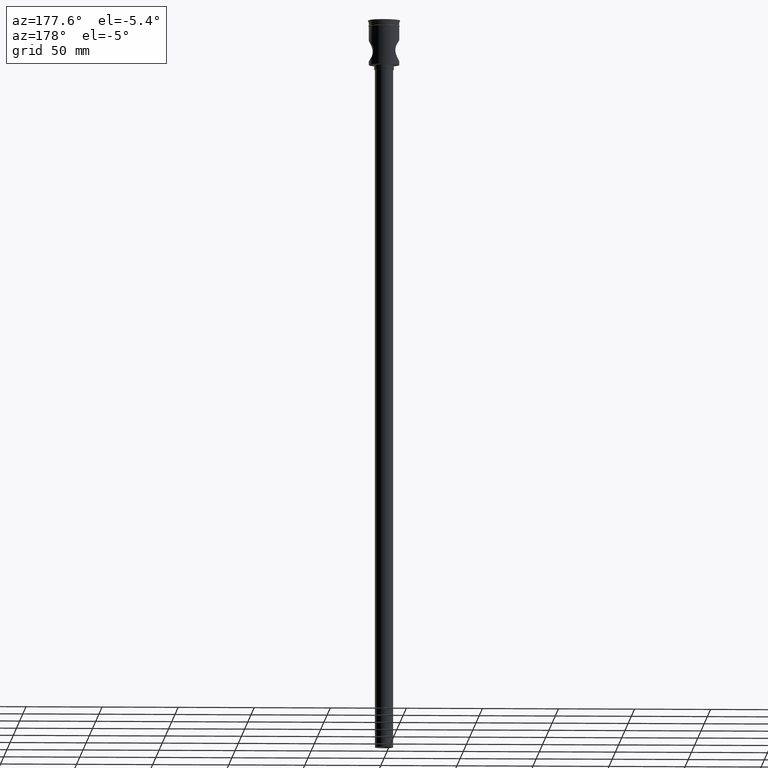
[diagram: clean part render]
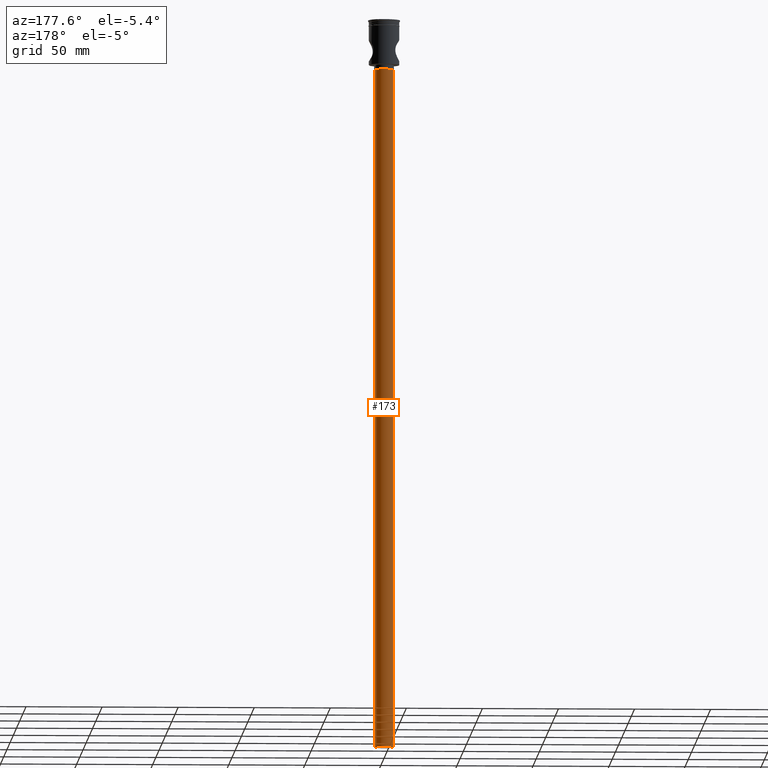
[diagram: same view with one face highlighted and labeled with its STEP entity id]
A machine part, auxiliary view. The second image highlights one B-rep face of the part: STEP entity #173.
In plain terms, the highlighted cylindrical surface (edge-blend (fillet) strip) has radius 6 mm, axis along (-0, -0, 1).
Its self-contained STEP definition (entity closure, byte-faithful):
#4 = LINE ( 'NONE', #823, #487 ) ;
#18 = ORIENTED_EDGE ( 'NONE', *, *, #248, .F. ) ;
#68 = CARTESIAN_POINT ( 'NONE',  ( 6.000000000000000888, 0.000000000000000000, -32.50000000000000000 ) ) ;
#135 = CARTESIAN_POINT ( 'NONE',  ( -6.000000000000000888, 7.347880794884120722E-16, -479.5000000000000568 ) ) ;
#146 = VERTEX_POINT ( 'NONE', #1260 ) ;
#173 = ADVANCED_FACE ( 'NONE', ( #1521 ), #550, .T. ) ;
#176 = AXIS2_PLACEMENT_3D ( 'NONE', #1518, #1310, #699 ) ;
#186 = EDGE_LOOP ( 'NONE', ( #235, #325, #842, #18 ) ) ;
#231 = DIRECTION ( 'NONE',  ( 1.000000000000000000, 0.000000000000000000, 0.000000000000000000 ) ) ;
#235 = ORIENTED_EDGE ( 'NONE', *, *, #955, .F. ) ;
#248 = EDGE_CURVE ( 'NONE', #146, #436, #4, .T. ) ;
#291 = CIRCLE ( 'NONE', #860, 6.000000000000000888 ) ;
#325 = ORIENTED_EDGE ( 'NONE', *, *, #1233, .T. ) ;
#377 = LINE ( 'NONE', #496, #391 ) ;
#391 = VECTOR ( 'NONE', #1180, 1000.000000000000000 ) ;
#415 = CIRCLE ( 'NONE', #176, 6.000000000000000888 ) ;
#436 = VERTEX_POINT ( 'NONE', #68 ) ;
#487 = VECTOR ( 'NONE', #840, 1000.000000000000000 ) ;
#496 = CARTESIAN_POINT ( 'NONE',  ( -6.000000000000000888, 7.347880794884120722E-16, -479.5000000000000568 ) ) ;
#550 = CYLINDRICAL_SURFACE ( 'NONE', #1483, 6.000000000000000888 ) ;
#614 = DIRECTION ( 'NONE',  ( 0.000000000000000000, 0.000000000000000000, -1.000000000000000000 ) ) ;
#621 = CARTESIAN_POINT ( 'NONE',  ( 0.000000000000000000, 0.000000000000000000, -479.5000000000000568 ) ) ;
#662 = CARTESIAN_POINT ( 'NONE',  ( 0.000000000000000000, 0.000000000000000000, -479.5000000000000568 ) ) ;
#699 = DIRECTION ( 'NONE',  ( -1.000000000000000000, 0.000000000000000000, 0.000000000000000000 ) ) ;
#823 = CARTESIAN_POINT ( 'NONE',  ( 6.000000000000000888, 0.000000000000000000, -479.5000000000000568 ) ) ;
#840 = DIRECTION ( 'NONE',  ( -0.000000000000000000, -0.000000000000000000, 1.000000000000000000 ) ) ;
#842 = ORIENTED_EDGE ( 'NONE', *, *, #1011, .T. ) ;
#847 = VERTEX_POINT ( 'NONE', #1273 ) ;
#860 = AXIS2_PLACEMENT_3D ( 'NONE', #621, #614, #1340 ) ;
#955 = EDGE_CURVE ( 'NONE', #1300, #146, #291, .T. ) ;
#1011 = EDGE_CURVE ( 'NONE', #847, #436, #415, .T. ) ;
#1160 = DIRECTION ( 'NONE',  ( -0.000000000000000000, -0.000000000000000000, 1.000000000000000000 ) ) ;
#1180 = DIRECTION ( 'NONE',  ( -0.000000000000000000, -0.000000000000000000, 1.000000000000000000 ) ) ;
#1233 = EDGE_CURVE ( 'NONE', #1300, #847, #377, .T. ) ;
#1260 = CARTESIAN_POINT ( 'NONE',  ( 6.000000000000000888, 0.000000000000000000, -479.5000000000000568 ) ) ;
#1273 = CARTESIAN_POINT ( 'NONE',  ( -6.000000000000000888, 7.347880794884120722E-16, -32.50000000000000000 ) ) ;
#1300 = VERTEX_POINT ( 'NONE', #135 ) ;
#1310 = DIRECTION ( 'NONE',  ( 0.000000000000000000, 0.000000000000000000, -1.000000000000000000 ) ) ;
#1340 = DIRECTION ( 'NONE',  ( -1.000000000000000000, 0.000000000000000000, 0.000000000000000000 ) ) ;
#1483 = AXIS2_PLACEMENT_3D ( 'NONE', #662, #1160, #231 ) ;
#1518 = CARTESIAN_POINT ( 'NONE',  ( 0.000000000000000000, 0.000000000000000000, -32.50000000000000000 ) ) ;
#1521 = FACE_OUTER_BOUND ( 'NONE', #186, .T. ) ;